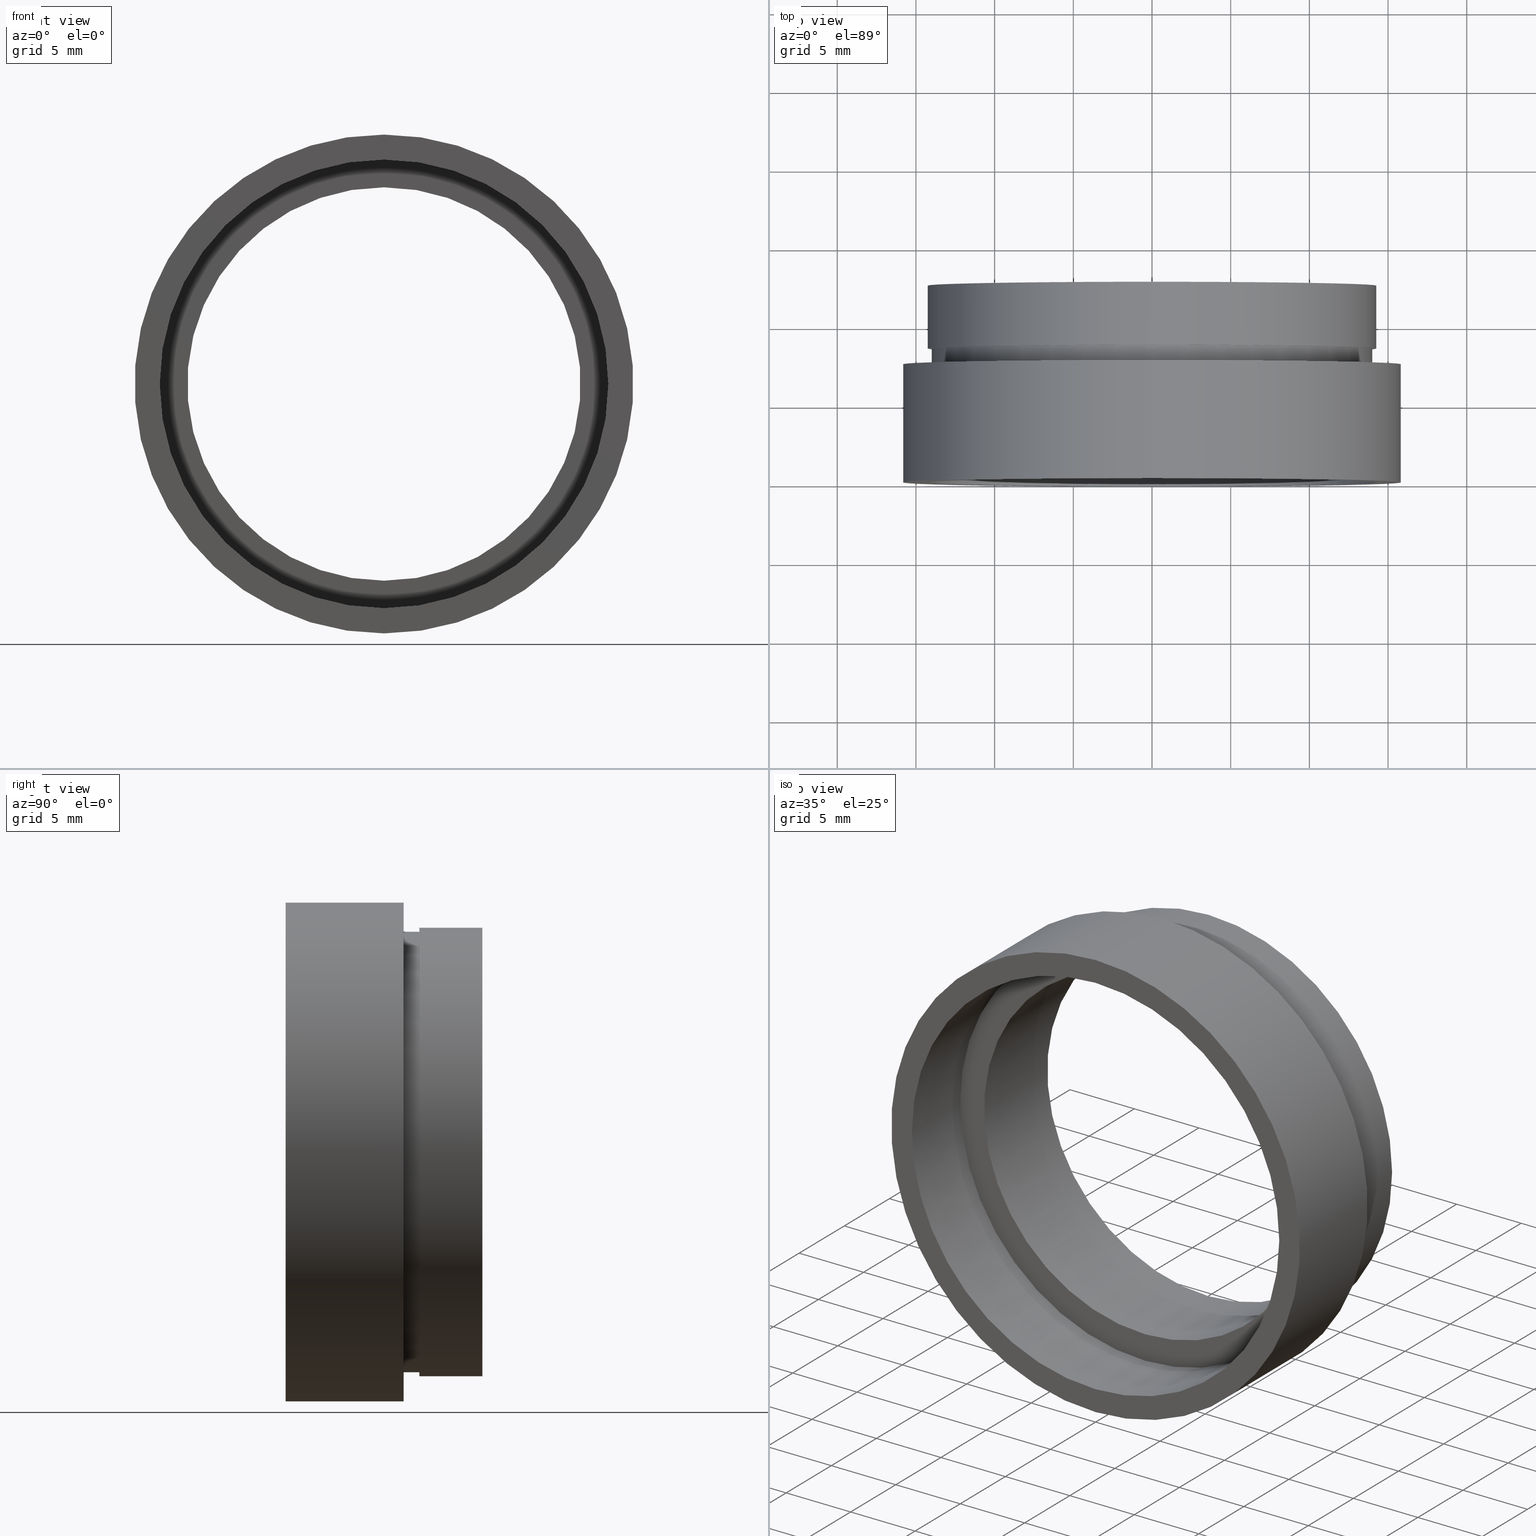
[diagram: canonical four-view strip — front | top / right | iso, engineering-drawing reading convention]
A machine part, canonical four-view strip (front | top / right | iso — engineering-drawing reading convention). The complete STEP part file that produces these views, byte-faithful:
ISO-10303-21;
HEADER;
FILE_DESCRIPTION (( 'STEP AP214' ),
    '1' );
FILE_NAME ('503049.STEP',
    '2019-09-06T06:44:08',
    ( '' ),
    ( '' ),
    'SwSTEP 2.0',
    'SolidWorks 2016',
    '' );
FILE_SCHEMA (( 'AUTOMOTIVE_DESIGN' ));
ENDSEC;

DATA;
#1 = EDGE_CURVE ( 'NONE', #366, #223, #378, .T. ) ;
#2 = FILL_AREA_STYLE_COLOUR ( '', #296 ) ;
#3 = AXIS2_PLACEMENT_3D ( 'NONE', #108, #254, #531 ) ;
#4 = DIRECTION ( 'NONE',  ( 0.0000000000000000000, 0.0000000000000000000, 1.000000000000000000 ) ) ;
#5 = CARTESIAN_POINT ( 'NONE',  ( 1.745121688784980600E-015, 161.3761669434274500, -14.25000000000002000 ) ) ;
#6 = DIRECTION ( 'NONE',  ( 0.0000000000000000000, -0.0000000000000000000, -1.000000000000000000 ) ) ;
#7 = AXIS2_PLACEMENT_3D ( 'NONE', #461, #78, #122 ) ;
#8 = CARTESIAN_POINT ( 'NONE',  ( 1.745121688784980200E-015, 12.49999999999998400, -14.25000000000001800 ) ) ;
#9 = ORIENTED_EDGE ( 'NONE', *, *, #424, .F. ) ;
#10 = DIRECTION ( 'NONE',  ( 0.0000000000000000000, 0.0000000000000000000, 1.000000000000000000 ) ) ;
#11 = SURFACE_STYLE_FILL_AREA ( #164 ) ;
#12 = ORIENTED_EDGE ( 'NONE', *, *, #448, .T. ) ;
#13 = CARTESIAN_POINT ( 'NONE',  ( 0.0000000000000000000, -2.775557561562891400E-014, 15.85000000000002100 ) ) ;
#14 = AXIS2_PLACEMENT_3D ( 'NONE', #413, #81, #414 ) ;
#15 = UNCERTAINTY_MEASURE_WITH_UNIT (LENGTH_MEASURE( 1.000000000000000100E-005 ), #157, 'distance_accuracy_value', 'NONE');
#16 = VERTEX_POINT ( 'NONE', #72 ) ;
#17 = ORIENTED_EDGE ( 'NONE', *, *, #1, .T. ) ;
#18 = PRESENTATION_STYLE_ASSIGNMENT (( #112 ) ) ;
#19 = ADVANCED_FACE ( 'NONE', ( #49, #125 ), #265, .F. ) ;
#20 =( NAMED_UNIT ( * ) PLANE_ANGLE_UNIT ( ) SI_UNIT ( $, .RADIAN. ) );
#21 = VECTOR ( 'NONE', #599, 1000.000000000000000 ) ;
#22 =( NAMED_UNIT ( * ) PLANE_ANGLE_UNIT ( ) SI_UNIT ( $, .RADIAN. ) );
#23 =( GEOMETRIC_REPRESENTATION_CONTEXT ( 3 ) GLOBAL_UNCERTAINTY_ASSIGNED_CONTEXT ( ( #82 ) ) GLOBAL_UNIT_ASSIGNED_CONTEXT ( ( #60, #20, #541 ) ) REPRESENTATION_CONTEXT ( 'NONE', 'WORKASPACE' ) );
#24 = DIRECTION ( 'NONE',  ( -0.0000000000000000000, 1.000000000000000000, 0.0000000000000000000 ) ) ;
#25 = AXIS2_PLACEMENT_3D ( 'NONE', #43, #183, #299 ) ;
#26 = FILL_AREA_STYLE_COLOUR ( '', #295 ) ;
#27 = ORIENTED_EDGE ( 'NONE', *, *, #242, .F. ) ;
#28 = ORIENTED_EDGE ( 'NONE', *, *, #536, .F. ) ;
#29 = EDGE_CURVE ( 'NONE', #316, #45, #610, .T. ) ;
#30 = CARTESIAN_POINT ( 'NONE',  ( 0.0000000000000000000, 161.3761669434274500, 0.0000000000000000000 ) ) ;
#31 = MANIFOLD_SOLID_BREP ( '��ת1', #465 ) ;
#32 = SURFACE_STYLE_FILL_AREA ( #218 ) ;
#33 = DIRECTION ( 'NONE',  ( 0.0000000000000000000, 0.0000000000000000000, 1.000000000000000000 ) ) ;
#34 = CYLINDRICAL_SURFACE ( 'NONE', #453, 14.25000000000002000 ) ;
#35 = PRESENTATION_LAYER_ASSIGNMENT (  '', '', ( #282 ) ) ;
#36 = CARTESIAN_POINT ( 'NONE',  ( 0.0000000000000000000, 161.3761669434274500, 14.25000000000002000 ) ) ;
#37 = CARTESIAN_POINT ( 'NONE',  ( 0.0000000000000000000, 4.500000000000032000, 0.0000000000000000000 ) ) ;
#38 =( LENGTH_UNIT ( ) NAMED_UNIT ( * ) SI_UNIT ( .MILLI., .METRE. ) );
#39 = AXIS2_PLACEMENT_3D ( 'NONE', #609, #558, #426 ) ;
#40 = DIRECTION ( 'NONE',  ( -0.0000000000000000000, 1.000000000000000000, -0.0000000000000000000 ) ) ;
#41 = EDGE_CURVE ( 'NONE', #45, #314, #363, .T. ) ;
#42 = DIRECTION ( 'NONE',  ( 0.0000000000000000000, -1.000000000000000000, 0.0000000000000000000 ) ) ;
#43 = CARTESIAN_POINT ( 'NONE',  ( 0.0000000000000000000, 161.3761669434274500, 0.0000000000000000000 ) ) ;
#44 = ORIENTED_EDGE ( 'NONE', *, *, #415, .T. ) ;
#45 = VERTEX_POINT ( 'NONE', #320 ) ;
#46 =( NAMED_UNIT ( * ) SI_UNIT ( $, .STERADIAN. ) SOLID_ANGLE_UNIT ( ) );
#47 = AXIS2_PLACEMENT_3D ( 'NONE', #369, #75, #560 ) ;
#48 =( NAMED_UNIT ( * ) PLANE_ANGLE_UNIT ( ) SI_UNIT ( $, .RADIAN. ) );
#49 = FACE_OUTER_BOUND ( 'NONE', #539, .T. ) ;
#50 = DIRECTION ( 'NONE',  ( -0.0000000000000000000, 1.000000000000000000, -0.0000000000000000000 ) ) ;
#51 = CARTESIAN_POINT ( 'NONE',  ( 1.530808498934193900E-015, 5.499999999999976900, -12.50000000000002000 ) ) ;
#52 = DIRECTION ( 'NONE',  ( 0.0000000000000000000, -1.000000000000000000, 0.0000000000000000000 ) ) ;
#53 = LINE ( 'NONE', #566, #327 ) ;
#54 = DIRECTION ( 'NONE',  ( 0.0000000000000000000, 0.0000000000000000000, 1.000000000000000000 ) ) ;
#55 = AXIS2_PLACEMENT_3D ( 'NONE', #523, #42, #431 ) ;
#56 = CYLINDRICAL_SURFACE ( 'NONE', #485, 15.85000000000002100 ) ;
#57 = EDGE_CURVE ( 'NONE', #316, #84, #174, .T. ) ;
#58 = VERTEX_POINT ( 'NONE', #225 ) ;
#59 = VECTOR ( 'NONE', #438, 1000.000000000000000 ) ;
#60 =( LENGTH_UNIT ( ) NAMED_UNIT ( * ) SI_UNIT ( .MILLI., .METRE. ) );
#61 = ADVANCED_FACE ( 'NONE', ( #588 ), #408, .T. ) ;
#62 = EDGE_CURVE ( 'NONE', #314, #84, #402, .T. ) ;
#63 = DIRECTION ( 'NONE',  ( 0.0000000000000000000, 0.0000000000000000000, 1.000000000000000000 ) ) ;
#64 = CIRCLE ( 'NONE', #39, 14.25000000000001800 ) ;
#65 = ORIENTED_EDGE ( 'NONE', *, *, #620, .F. ) ;
#66 = AXIS2_PLACEMENT_3D ( 'NONE', #298, #52, #6 ) ;
#67 = DIRECTION ( 'NONE',  ( 0.0000000000000000000, 0.0000000000000000000, 1.000000000000000000 ) ) ;
#68 = ORIENTED_EDGE ( 'NONE', *, *, #490, .F. ) ;
#69 = CARTESIAN_POINT ( 'NONE',  ( 0.0000000000000000000, 2.775557561562891400E-014, 0.0000000000000000000 ) ) ;
#70 = AXIS2_PLACEMENT_3D ( 'NONE', #153, #98, #477 ) ;
#71 = CIRCLE ( 'NONE', #182, 14.25000000000000000 ) ;
#72 = CARTESIAN_POINT ( 'NONE',  ( 0.0000000000000000000, 8.499999999999980500, 14.25000000000002000 ) ) ;
#73 = ORIENTED_EDGE ( 'NONE', *, *, #372, .T. ) ;
#74 = ORIENTED_EDGE ( 'NONE', *, *, #555, .T. ) ;
#75 = DIRECTION ( 'NONE',  ( -0.0000000000000000000, 1.000000000000000000, -0.0000000000000000000 ) ) ;
#76 = EDGE_CURVE ( 'NONE', #223, #576, #80, .T. ) ;
#77 = VECTOR ( 'NONE', #305, 1000.000000000000000 ) ;
#78 = DIRECTION ( 'NONE',  ( -0.0000000000000000000, 1.000000000000000000, -0.0000000000000000000 ) ) ;
#79 = PRESENTATION_LAYER_ASSIGNMENT (  '', '', ( #123 ) ) ;
#80 = LINE ( 'NONE', #457, #356 ) ;
#81 = DIRECTION ( 'NONE',  ( -0.0000000000000000000, 1.000000000000000000, -0.0000000000000000000 ) ) ;
#82 = UNCERTAINTY_MEASURE_WITH_UNIT (LENGTH_MEASURE( 1.000000000000000100E-005 ), #60, 'distance_accuracy_value', 'NONE');
#83 = DIRECTION ( 'NONE',  ( -0.0000000000000000000, 1.000000000000000000, -0.0000000000000000000 ) ) ;
#84 = VERTEX_POINT ( 'NONE', #505 ) ;
#85 = DIRECTION ( 'NONE',  ( -0.0000000000000000000, 1.000000000000000000, -0.0000000000000000000 ) ) ;
#86 = EDGE_LOOP ( 'NONE', ( #109, #306 ) ) ;
#87 = FACE_OUTER_BOUND ( 'NONE', #99, .T. ) ;
#88 = CARTESIAN_POINT ( 'NONE',  ( 1.714505518806296600E-015, 7.499999999999978700, -14.00000000000001800 ) ) ;
#89 = DIRECTION ( 'NONE',  ( -0.0000000000000000000, 1.000000000000000000, -0.0000000000000000000 ) ) ;
#90 = CYLINDRICAL_SURFACE ( 'NONE', #365, 14.00000000000001800 ) ;
#91 = PRODUCT_DEFINITION ( 'δ֪', '', #270, #288 ) ;
#92 = ORIENTED_EDGE ( 'NONE', *, *, #162, .F. ) ;
#93 = LINE ( 'NONE', #283, #199 ) ;
#94 = CARTESIAN_POINT ( 'NONE',  ( 1.745121688784980600E-015, 8.499999999999980500, -14.25000000000002000 ) ) ;
#95 = VECTOR ( 'NONE', #371, 1000.000000000000000 ) ;
#96 = DIRECTION ( 'NONE',  ( -0.0000000000000000000, 1.000000000000000000, -0.0000000000000000000 ) ) ;
#97 = EDGE_CURVE ( 'NONE', #16, #552, #582, .T. ) ;
#98 = DIRECTION ( 'NONE',  ( -0.0000000000000000000, 1.000000000000000000, -0.0000000000000000000 ) ) ;
#99 = EDGE_LOOP ( 'NONE', ( #118, #129 ) ) ;
#100 = EDGE_LOOP ( 'NONE', ( #27, #427 ) ) ;
#101 = CYLINDRICAL_SURFACE ( 'NONE', #172, 14.25000000000000000 ) ;
#102 = CARTESIAN_POINT ( 'NONE',  ( 0.0000000000000000000, 2.775557561562891400E-014, 0.0000000000000000000 ) ) ;
#103 = AXIS2_PLACEMENT_3D ( 'NONE', #236, #515, #568 ) ;
#104 = CARTESIAN_POINT ( 'NONE',  ( 0.0000000000000000000, 8.499999999999980500, 0.0000000000000000000 ) ) ;
#105 = PRESENTATION_STYLE_ASSIGNMENT (( #211 ) ) ;
#106 = DIRECTION ( 'NONE',  ( 0.0000000000000000000, -1.000000000000000000, 0.0000000000000000000 ) ) ;
#107 = MECHANICAL_DESIGN_GEOMETRIC_PRESENTATION_REPRESENTATION (  '', ( #147 ), #194 ) ;
#108 = CARTESIAN_POINT ( 'NONE',  ( 0.0000000000000000000, 7.499999999999978700, 0.0000000000000000000 ) ) ;
#109 = ORIENTED_EDGE ( 'NONE', *, *, #256, .T. ) ;
#110 = DIRECTION ( 'NONE',  ( -0.0000000000000000000, 1.000000000000000000, -0.0000000000000000000 ) ) ;
#111 = EDGE_CURVE ( 'NONE', #492, #538, #350, .T. ) ;
#112 = SURFACE_STYLE_USAGE ( .BOTH. , #403 ) ;
#113 = VECTOR ( 'NONE', #570, 1000.000000000000000 ) ;
#114 =( GEOMETRIC_REPRESENTATION_CONTEXT ( 3 ) GLOBAL_UNCERTAINTY_ASSIGNED_CONTEXT ( ( #264 ) ) GLOBAL_UNIT_ASSIGNED_CONTEXT ( ( #605, #323, #418 ) ) REPRESENTATION_CONTEXT ( 'NONE', 'WORKASPACE' ) );
#115 = ORIENTED_EDGE ( 'NONE', *, *, #536, .T. ) ;
#116 = EDGE_LOOP ( 'NONE', ( #184, #334, #507, #359 ) ) ;
#117 = FILL_AREA_STYLE ('',( #442 ) ) ;
#118 = ORIENTED_EDGE ( 'NONE', *, *, #595, .T. ) ;
#119 = CIRCLE ( 'NONE', #495, 14.00000000000001800 ) ;
#120 = PRESENTATION_LAYER_ASSIGNMENT (  '', '', ( #204 ) ) ;
#121 = ORIENTED_EDGE ( 'NONE', *, *, #97, .T. ) ;
#122 = DIRECTION ( 'NONE',  ( 0.0000000000000000000, 0.0000000000000000000, 1.000000000000000000 ) ) ;
#123 = STYLED_ITEM ( 'NONE', ( #478 ), #134 ) ;
#124 = SURFACE_SIDE_STYLE ('',( #543 ) ) ;
#125 = FACE_BOUND ( 'NONE', #584, .T. ) ;
#126 = CYLINDRICAL_SURFACE ( 'NONE', #140, 14.35000000000001900 ) ;
#127 = CARTESIAN_POINT ( 'NONE',  ( 0.0000000000000000000, 161.3761669434274500, 0.0000000000000000000 ) ) ;
#128 = EDGE_LOOP ( 'NONE', ( #243, #291, #344, #9 ) ) ;
#129 = ORIENTED_EDGE ( 'NONE', *, *, #424, .T. ) ;
#130 = ORIENTED_EDGE ( 'NONE', *, *, #430, .F. ) ;
#131 = EDGE_CURVE ( 'NONE', #170, #440, #269, .T. ) ;
#132 = DIRECTION ( 'NONE',  ( 0.0000000000000000000, 0.0000000000000000000, 1.000000000000000000 ) ) ;
#133 = CARTESIAN_POINT ( 'NONE',  ( 0.0000000000000000000, 8.499999999999980500, 0.0000000000000000000 ) ) ;
#134 = ADVANCED_FACE ( 'NONE', ( #499 ), #278, .F. ) ;
#135 = AXIS2_PLACEMENT_3D ( 'NONE', #616, #612, #285 ) ;
#136 = FACE_OUTER_BOUND ( 'NONE', #470, .T. ) ;
#137 = DIRECTION ( 'NONE',  ( 0.0000000000000000000, 0.0000000000000000000, 1.000000000000000000 ) ) ;
#138 = SURFACE_STYLE_USAGE ( .BOTH. , #177 ) ;
#139 =( LENGTH_UNIT ( ) NAMED_UNIT ( * ) SI_UNIT ( .MILLI., .METRE. ) );
#140 = AXIS2_PLACEMENT_3D ( 'NONE', #607, #178, #33 ) ;
#141 = ORIENTED_EDGE ( 'NONE', *, *, #338, .T. ) ;
#142 = CARTESIAN_POINT ( 'NONE',  ( 0.0000000000000000000, 161.3761669434274500, 0.0000000000000000000 ) ) ;
#143 = SURFACE_STYLE_USAGE ( .BOTH. , #428 ) ;
#144 = ORIENTED_EDGE ( 'NONE', *, *, #76, .T. ) ;
#145 = ORIENTED_EDGE ( 'NONE', *, *, #304, .F. ) ;
#146 = CARTESIAN_POINT ( 'NONE',  ( 1.745121688784978200E-015, 4.500000000000032000, -14.25000000000000000 ) ) ;
#147 = STYLED_ITEM ( 'NONE', ( #152 ), #163 ) ;
#148 = SURFACE_STYLE_FILL_AREA ( #255 ) ;
#149 = CARTESIAN_POINT ( 'NONE',  ( 0.0000000000000000000, 4.500000000000032000, 14.25000000000000000 ) ) ;
#150 = DIRECTION ( 'NONE',  ( -0.0000000000000000000, 1.000000000000000000, -0.0000000000000000000 ) ) ;
#151 = CARTESIAN_POINT ( 'NONE',  ( 1.941065176648557100E-015, 161.3761669434274500, -15.85000000000002100 ) ) ;
#152 = PRESENTATION_STYLE_ASSIGNMENT (( #458 ) ) ;
#153 = CARTESIAN_POINT ( 'NONE',  ( 0.0000000000000000000, 161.3761669434274500, 0.0000000000000000000 ) ) ;
#154 = CARTESIAN_POINT ( 'NONE',  ( 0.0000000000000000000, 2.775557561562891400E-014, 14.25000000000000000 ) ) ;
#155 = MECHANICAL_DESIGN_GEOMETRIC_PRESENTATION_REPRESENTATION (  '', ( #204 ), #23 ) ;
#156 = CARTESIAN_POINT ( 'NONE',  ( 1.530808498934193900E-015, 161.3761669434274500, -12.50000000000002000 ) ) ;
#157 =( LENGTH_UNIT ( ) NAMED_UNIT ( * ) SI_UNIT ( .MILLI., .METRE. ) );
#158 = AXIS2_PLACEMENT_3D ( 'NONE', #513, #226, #563 ) ;
#159 = CARTESIAN_POINT ( 'NONE',  ( 0.0000000000000000000, 161.3761669434274500, 0.0000000000000000000 ) ) ;
#160 = EDGE_LOOP ( 'NONE', ( #390, #603, #289, #74 ) ) ;
#161 = CARTESIAN_POINT ( 'NONE',  ( 0.0000000000000000000, 161.3761669434274500, 0.0000000000000000000 ) ) ;
#162 = EDGE_CURVE ( 'NONE', #429, #492, #528, .T. ) ;
#163 = ADVANCED_FACE ( 'NONE', ( #136 ), #165, .F. ) ;
#164 = FILL_AREA_STYLE ('',( #542 ) ) ;
#165 = CYLINDRICAL_SURFACE ( 'NONE', #526, 12.50000000000002000 ) ;
#166 = PRESENTATION_LAYER_ASSIGNMENT (  '', '', ( #311 ) ) ;
#167 = ADVANCED_FACE ( 'NONE', ( #227 ), #34, .T. ) ;
#168 = EDGE_CURVE ( 'NONE', #492, #429, #489, .T. ) ;
#169 = ORIENTED_EDGE ( 'NONE', *, *, #217, .F. ) ;
#170 = VERTEX_POINT ( 'NONE', #421 ) ;
#171 = EDGE_CURVE ( 'NONE', #552, #360, #64, .T. ) ;
#172 = AXIS2_PLACEMENT_3D ( 'NONE', #161, #110, #493 ) ;
#173 = SURFACE_SIDE_STYLE ('',( #32 ) ) ;
#174 = LINE ( 'NONE', #549, #396 ) ;
#175 = PRESENTATION_STYLE_ASSIGNMENT (( #439 ) ) ;
#176 = FILL_AREA_STYLE_COLOUR ( '', #322 ) ;
#177 = SURFACE_SIDE_STYLE ('',( #434 ) ) ;
#178 = DIRECTION ( 'NONE',  ( -0.0000000000000000000, 1.000000000000000000, -0.0000000000000000000 ) ) ;
#179 = PLANE ( 'NONE',  #614 ) ;
#180 = LINE ( 'NONE', #156, #425 ) ;
#181 = CARTESIAN_POINT ( 'NONE',  ( 12.50000000000002000, 5.499999999999984000, 0.0000000000000000000 ) ) ;
#182 = AXIS2_PLACEMENT_3D ( 'NONE', #37, #85, #284 ) ;
#183 = DIRECTION ( 'NONE',  ( -0.0000000000000000000, 1.000000000000000000, -0.0000000000000000000 ) ) ;
#184 = ORIENTED_EDGE ( 'NONE', *, *, #242, .T. ) ;
#185 = VERTEX_POINT ( 'NONE', #88 ) ;
#186 = CIRCLE ( 'NONE', #3, 14.00000000000001800 ) ;
#187 = APPLICATION_CONTEXT ( 'automotive_design' ) ;
#188 = SURFACE_SIDE_STYLE ('',( #600 ) ) ;
#189 = ADVANCED_FACE ( 'NONE', ( #409, #195 ), #179, .F. ) ;
#190 =( LENGTH_UNIT ( ) NAMED_UNIT ( * ) SI_UNIT ( .MILLI., .METRE. ) );
#191 = EDGE_CURVE ( 'NONE', #215, #576, #71, .T. ) ;
#192 = DIRECTION ( 'NONE',  ( 0.0000000000000000000, 0.0000000000000000000, 1.000000000000000000 ) ) ;
#193 = EDGE_LOOP ( 'NONE', ( #591, #404, #266, #324 ) ) ;
#194 =( GEOMETRIC_REPRESENTATION_CONTEXT ( 3 ) GLOBAL_UNCERTAINTY_ASSIGNED_CONTEXT ( ( #571 ) ) GLOBAL_UNIT_ASSIGNED_CONTEXT ( ( #508, #512, #554 ) ) REPRESENTATION_CONTEXT ( 'NONE', 'WORKASPACE' ) );
#195 = FACE_BOUND ( 'NONE', #86, .T. ) ;
#196 = ORIENTED_EDGE ( 'NONE', *, *, #29, .T. ) ;
#197 = CARTESIAN_POINT ( 'NONE',  ( 1.714505518806296600E-015, 161.3761669434274500, -14.00000000000001800 ) ) ;
#198 = ORIENTED_EDGE ( 'NONE', *, *, #168, .T. ) ;
#199 = VECTOR ( 'NONE', #40, 1000.000000000000000 ) ;
#200 = CARTESIAN_POINT ( 'NONE',  ( 0.0000000000000000000, 12.49999999999998400, 14.25000000000001800 ) ) ;
#201 = SURFACE_SIDE_STYLE ('',( #148 ) ) ;
#202 = COLOUR_RGB ( '',1.000000000000000000, 1.000000000000000000, 1.000000000000000000 ) ;
#203 = EDGE_CURVE ( 'NONE', #604, #16, #467, .T. ) ;
#204 = STYLED_ITEM ( 'NONE', ( #224 ), #520 ) ;
#205 = ADVANCED_FACE ( 'NONE', ( #351 ), #126, .F. ) ;
#206 = DIRECTION ( 'NONE',  ( -0.0000000000000000000, 1.000000000000000000, -0.0000000000000000000 ) ) ;
#207 = ORIENTED_EDGE ( 'NONE', *, *, #555, .F. ) ;
#208 = EDGE_LOOP ( 'NONE', ( #141, #623, #494, #258 ) ) ;
#209 = LINE ( 'NONE', #197, #77 ) ;
#210 = ADVANCED_FACE ( 'NONE', ( #370 ), #237, .F. ) ;
#211 = SURFACE_STYLE_USAGE ( .BOTH. , #594 ) ;
#212 = CIRCLE ( 'NONE', #376, 14.25000000000002000 ) ;
#213 = DIRECTION ( 'NONE',  ( 0.0000000000000000000, 0.0000000000000000000, 1.000000000000000000 ) ) ;
#214 = ORIENTED_EDGE ( 'NONE', *, *, #372, .F. ) ;
#215 = VERTEX_POINT ( 'NONE', #149 ) ;
#216 = FACE_OUTER_BOUND ( 'NONE', #391, .T. ) ;
#217 = EDGE_CURVE ( 'NONE', #604, #360, #544, .T. ) ;
#218 = FILL_AREA_STYLE ('',( #26 ) ) ;
#219 = DIRECTION ( 'NONE',  ( -0.0000000000000000000, 1.000000000000000000, -0.0000000000000000000 ) ) ;
#220 = DIRECTION ( 'NONE',  ( -0.0000000000000000000, 1.000000000000000000, -0.0000000000000000000 ) ) ;
#221 = EDGE_LOOP ( 'NONE', ( #28, #618, #345, #596 ) ) ;
#222 = CARTESIAN_POINT ( 'NONE',  ( 14.00000000000001800, 8.499999999999985800, 0.0000000000000000000 ) ) ;
#223 = VERTEX_POINT ( 'NONE', #387 ) ;
#224 = PRESENTATION_STYLE_ASSIGNMENT (( #257 ) ) ;
#225 = CARTESIAN_POINT ( 'NONE',  ( 0.0000000000000000000, 7.499999999999978700, 14.00000000000001800 ) ) ;
#226 = DIRECTION ( 'NONE',  ( -0.0000000000000000000, 1.000000000000000000, -0.0000000000000000000 ) ) ;
#227 = FACE_OUTER_BOUND ( 'NONE', #585, .T. ) ;
#228 = FILL_AREA_STYLE ('',( #315 ) ) ;
#229 = PLANE ( 'NONE',  #444 ) ;
#230 = STYLED_ITEM ( 'NONE', ( #175 ), #281 ) ;
#231 = VERTEX_POINT ( 'NONE', #297 ) ;
#232 = ORIENTED_EDGE ( 'NONE', *, *, #598, .T. ) ;
#233 = LINE ( 'NONE', #151, #59 ) ;
#234 = DIRECTION ( 'NONE',  ( -0.0000000000000000000, 1.000000000000000000, -0.0000000000000000000 ) ) ;
#235 = CARTESIAN_POINT ( 'NONE',  ( 0.0000000000000000000, 7.499999999999978700, 0.0000000000000000000 ) ) ;
#236 = CARTESIAN_POINT ( 'NONE',  ( 0.0000000000000000000, 5.499999999999976900, 0.0000000000000000000 ) ) ;
#237 = CYLINDRICAL_SURFACE ( 'NONE', #355, 14.35000000000001900 ) ;
#238 = DIRECTION ( 'NONE',  ( 0.0000000000000000000, 0.0000000000000000000, 1.000000000000000000 ) ) ;
#239 = ADVANCED_FACE ( 'NONE', ( #397 ), #90, .T. ) ;
#240 =( NAMED_UNIT ( * ) PLANE_ANGLE_UNIT ( ) SI_UNIT ( $, .RADIAN. ) );
#241 = VERTEX_POINT ( 'NONE', #51 ) ;
#242 = EDGE_CURVE ( 'NONE', #58, #185, #249, .T. ) ;
#243 = ORIENTED_EDGE ( 'NONE', *, *, #448, .F. ) ;
#244 = AXIS2_PLACEMENT_3D ( 'NONE', #159, #261, #309 ) ;
#245 = EDGE_LOOP ( 'NONE', ( #463, #602 ) ) ;
#246 = DIRECTION ( 'NONE',  ( -0.0000000000000000000, 1.000000000000000000, -0.0000000000000000000 ) ) ;
#247 = CARTESIAN_POINT ( 'NONE',  ( 0.0000000000000000000, 161.3761669434274500, 0.0000000000000000000 ) ) ;
#248 = PLANE ( 'NONE',  #66 ) ;
#249 = CIRCLE ( 'NONE', #318, 14.00000000000001800 ) ;
#250 = CARTESIAN_POINT ( 'NONE',  ( 0.0000000000000000000, 5.499999999999976900, 0.0000000000000000000 ) ) ;
#251 = DIRECTION ( 'NONE',  ( -0.0000000000000000000, 1.000000000000000000, -0.0000000000000000000 ) ) ;
#252 = AXIS2_PLACEMENT_3D ( 'NONE', #401, #106, #395 ) ;
#253 = FACE_OUTER_BOUND ( 'NONE', #480, .T. ) ;
#254 = DIRECTION ( 'NONE',  ( -0.0000000000000000000, 1.000000000000000000, -0.0000000000000000000 ) ) ;
#255 = FILL_AREA_STYLE ('',( #488 ) ) ;
#256 = EDGE_CURVE ( 'NONE', #441, #325, #449, .T. ) ;
#257 = SURFACE_STYLE_USAGE ( .BOTH. , #201 ) ;
#258 = ORIENTED_EDGE ( 'NONE', *, *, #97, .F. ) ;
#259 = ORIENTED_EDGE ( 'NONE', *, *, #462, .T. ) ;
#260 = ADVANCED_FACE ( 'NONE', ( #340 ), #589, .T. ) ;
#261 = DIRECTION ( 'NONE',  ( -0.0000000000000000000, 1.000000000000000000, -0.0000000000000000000 ) ) ;
#262 = CARTESIAN_POINT ( 'NONE',  ( 0.0000000000000000000, 4.499999999999976000, 0.0000000000000000000 ) ) ;
#263 = SHAPE_DEFINITION_REPRESENTATION ( #546, #564 ) ;
#264 = UNCERTAINTY_MEASURE_WITH_UNIT (LENGTH_MEASURE( 1.000000000000000100E-005 ), #605, 'distance_accuracy_value', 'NONE');
#265 = PLANE ( 'NONE',  #500 ) ;
#266 = ORIENTED_EDGE ( 'NONE', *, *, #620, .T. ) ;
#267 = UNCERTAINTY_MEASURE_WITH_UNIT (LENGTH_MEASURE( 1.000000000000000100E-005 ), #38, 'distance_accuracy_value', 'NONE');
#268 =( NAMED_UNIT ( * ) SI_UNIT ( $, .STERADIAN. ) SOLID_ANGLE_UNIT ( ) );
#269 = CIRCLE ( 'NONE', #7, 12.50000000000002000 ) ;
#270 = PRODUCT_DEFINITION_FORMATION_WITH_SPECIFIED_SOURCE ( '�κ�', '', #486, .NOT_KNOWN. ) ;
#271 = FILL_AREA_STYLE ('',( #176 ) ) ;
#272 = ORIENTED_EDGE ( 'NONE', *, *, #111, .F. ) ;
#273 = ORIENTED_EDGE ( 'NONE', *, *, #168, .F. ) ;
#274 = DIRECTION ( 'NONE',  ( 0.0000000000000000000, 0.0000000000000000000, 1.000000000000000000 ) ) ;
#275 = CIRCLE ( 'NONE', #384, 14.25000000000001800 ) ;
#276 = PRESENTATION_LAYER_ASSIGNMENT (  '', '', ( #147 ) ) ;
#277 = AXIS2_PLACEMENT_3D ( 'NONE', #587, #405, #63 ) ;
#278 = CYLINDRICAL_SURFACE ( 'NONE', #601, 12.50000000000002000 ) ;
#279 = COLOUR_RGB ( '',1.000000000000000000, 1.000000000000000000, 1.000000000000000000 ) ;
#280 = DIRECTION ( 'NONE',  ( -0.0000000000000000000, 1.000000000000000000, -0.0000000000000000000 ) ) ;
#281 = ADVANCED_FACE ( 'NONE', ( #529 ), #379, .F. ) ;
#282 = STYLED_ITEM ( 'NONE', ( #18 ), #491 ) ;
#283 = CARTESIAN_POINT ( 'NONE',  ( 0.0000000000000000000, 161.3761669434274500, 14.00000000000001800 ) ) ;
#284 = DIRECTION ( 'NONE',  ( 0.0000000000000000000, 0.0000000000000000000, 1.000000000000000000 ) ) ;
#285 = DIRECTION ( 'NONE',  ( 0.0000000000000000000, 0.0000000000000000000, 1.000000000000000000 ) ) ;
#286 = EDGE_CURVE ( 'NONE', #223, #366, #364, .T. ) ;
#287 = DIRECTION ( 'NONE',  ( 0.0000000000000000000, 0.0000000000000000000, 1.000000000000000000 ) ) ;
#288 = PRODUCT_DEFINITION_CONTEXT ( 'detailed design', #341, 'design' ) ;
#289 = ORIENTED_EDGE ( 'NONE', *, *, #57, .T. ) ;
#290 = DIRECTION ( 'NONE',  ( 0.0000000000000000000, 0.0000000000000000000, 1.000000000000000000 ) ) ;
#291 = ORIENTED_EDGE ( 'NONE', *, *, #162, .T. ) ;
#292 = COLOUR_RGB ( '',1.000000000000000000, 1.000000000000000000, 1.000000000000000000 ) ;
#293 = PLANE ( 'NONE',  #55 ) ;
#294 =( NAMED_UNIT ( * ) SI_UNIT ( $, .STERADIAN. ) SOLID_ANGLE_UNIT ( ) );
#295 = COLOUR_RGB ( '',1.000000000000000000, 1.000000000000000000, 1.000000000000000000 ) ;
#296 = COLOUR_RGB ( '',1.000000000000000000, 1.000000000000000000, 1.000000000000000000 ) ;
#297 = CARTESIAN_POINT ( 'NONE',  ( 0.0000000000000000000, 5.499999999999976900, 12.50000000000002000 ) ) ;
#298 = CARTESIAN_POINT ( 'NONE',  ( 12.50000000000002000, 12.49999999999998900, 0.0000000000000000000 ) ) ;
#299 = DIRECTION ( 'NONE',  ( 0.0000000000000000000, 0.0000000000000000000, 1.000000000000000000 ) ) ;
#300 = PRODUCT_RELATED_PRODUCT_CATEGORY ( 'part', '', ( #486 ) ) ;
#301 = DIRECTION ( 'NONE',  ( 0.0000000000000000000, 0.0000000000000000000, 1.000000000000000000 ) ) ;
#302 = PRESENTATION_STYLE_ASSIGNMENT (( #143 ) ) ;
#303 = CARTESIAN_POINT ( 'NONE',  ( 0.0000000000000000000, 12.49999999999998400, 0.0000000000000000000 ) ) ;
#304 = EDGE_CURVE ( 'NONE', #325, #441, #119, .T. ) ;
#305 = DIRECTION ( 'NONE',  ( -0.0000000000000000000, 1.000000000000000000, -0.0000000000000000000 ) ) ;
#306 = ORIENTED_EDGE ( 'NONE', *, *, #304, .T. ) ;
#307 = AXIS2_PLACEMENT_3D ( 'NONE', #525, #50, #399 ) ;
#308 = ORIENTED_EDGE ( 'NONE', *, *, #332, .T. ) ;
#309 = DIRECTION ( 'NONE',  ( 0.0000000000000000000, 0.0000000000000000000, 1.000000000000000000 ) ) ;
#310 = PRESENTATION_LAYER_ASSIGNMENT (  '', '', ( #559 ) ) ;
#311 = STYLED_ITEM ( 'NONE', ( #302 ), #564 ) ;
#312 = VECTOR ( 'NONE', #557, 1000.000000000000000 ) ;
#313 = PRESENTATION_STYLE_ASSIGNMENT (( #138 ) ) ;
#314 = VERTEX_POINT ( 'NONE', #348 ) ;
#315 = FILL_AREA_STYLE_COLOUR ( '', #202 ) ;
#316 = VERTEX_POINT ( 'NONE', #484 ) ;
#317 = ORIENTED_EDGE ( 'NONE', *, *, #415, .F. ) ;
#318 = AXIS2_PLACEMENT_3D ( 'NONE', #235, #624, #287 ) ;
#319 = FACE_BOUND ( 'NONE', #100, .T. ) ;
#320 = CARTESIAN_POINT ( 'NONE',  ( 1.757368156776454300E-015, 4.499999999999976000, -14.35000000000001900 ) ) ;
#321 = DIRECTION ( 'NONE',  ( -0.0000000000000000000, 1.000000000000000000, -0.0000000000000000000 ) ) ;
#322 = COLOUR_RGB ( '',1.000000000000000000, 1.000000000000000000, 1.000000000000000000 ) ;
#323 =( NAMED_UNIT ( * ) PLANE_ANGLE_UNIT ( ) SI_UNIT ( $, .RADIAN. ) );
#324 = ORIENTED_EDGE ( 'NONE', *, *, #191, .T. ) ;
#325 = VERTEX_POINT ( 'NONE', #432 ) ;
#326 = CARTESIAN_POINT ( 'NONE',  ( 0.0000000000000000000, 161.3761669434274500, 0.0000000000000000000 ) ) ;
#327 = VECTOR ( 'NONE', #234, 1000.000000000000000 ) ;
#328 = AXIS2_PLACEMENT_3D ( 'NONE', #406, #537, #450 ) ;
#329 = DIRECTION ( 'NONE',  ( 0.0000000000000000000, 0.0000000000000000000, 1.000000000000000000 ) ) ;
#330 = FACE_OUTER_BOUND ( 'NONE', #128, .T. ) ;
#331 = CARTESIAN_POINT ( 'NONE',  ( 0.0000000000000000000, 0.0000000000000000000, 0.0000000000000000000 ) ) ;
#332 = EDGE_CURVE ( 'NONE', #231, #440, #460, .T. ) ;
#333 = UNCERTAINTY_MEASURE_WITH_UNIT (LENGTH_MEASURE( 1.000000000000000100E-005 ), #139, 'distance_accuracy_value', 'NONE');
#334 = ORIENTED_EDGE ( 'NONE', *, *, #522, .T. ) ;
#335 = EDGE_LOOP ( 'NONE', ( #483, #353, #232, #145 ) ) ;
#336 = CIRCLE ( 'NONE', #135, 15.85000000000002100 ) ;
#337 = DIRECTION ( 'NONE',  ( 0.0000000000000000000, 0.0000000000000000000, 1.000000000000000000 ) ) ;
#338 = EDGE_CURVE ( 'NONE', #16, #604, #212, .T. ) ;
#339 = COLOUR_RGB ( '',1.000000000000000000, 1.000000000000000000, 1.000000000000000000 ) ;
#340 = FACE_OUTER_BOUND ( 'NONE', #116, .T. ) ;
#341 = APPLICATION_CONTEXT ( 'automotive_design' ) ;
#342 = ADVANCED_FACE ( 'NONE', ( #330 ), #56, .T. ) ;
#343 =( GEOMETRIC_REPRESENTATION_CONTEXT ( 3 ) GLOBAL_UNCERTAINTY_ASSIGNED_CONTEXT ( ( #267 ) ) GLOBAL_UNIT_ASSIGNED_CONTEXT ( ( #38, #514, #380 ) ) REPRESENTATION_CONTEXT ( 'NONE', 'WORKASPACE' ) );
#344 = ORIENTED_EDGE ( 'NONE', *, *, #111, .T. ) ;
#345 = ORIENTED_EDGE ( 'NONE', *, *, #62, .T. ) ;
#346 = FILL_AREA_STYLE ('',( #2 ) ) ;
#347 = CARTESIAN_POINT ( 'NONE',  ( 0.0000000000000000000, 12.49999999999998400, 12.50000000000002000 ) ) ;
#348 = CARTESIAN_POINT ( 'NONE',  ( 1.757368156776454300E-015, 5.499999999999976900, -14.35000000000001900 ) ) ;
#349 = CARTESIAN_POINT ( 'NONE',  ( 1.941065176648557100E-015, -2.775557561562891400E-014, -15.85000000000002100 ) ) ;
#350 = LINE ( 'NONE', #419, #312 ) ;
#351 = FACE_OUTER_BOUND ( 'NONE', #221, .T. ) ;
#352 = MECHANICAL_DESIGN_GEOMETRIC_PRESENTATION_REPRESENTATION (  '', ( #282 ), #362 ) ;
#353 = ORIENTED_EDGE ( 'NONE', *, *, #459, .T. ) ;
#354 = CARTESIAN_POINT ( 'NONE',  ( 0.0000000000000000000, 7.499999999999978700, 15.85000000000002100 ) ) ;
#355 = AXIS2_PLACEMENT_3D ( 'NONE', #247, #479, #54 ) ;
#356 = VECTOR ( 'NONE', #377, 1000.000000000000000 ) ;
#357 =( NAMED_UNIT ( * ) SI_UNIT ( $, .STERADIAN. ) SOLID_ANGLE_UNIT ( ) );
#358 = CIRCLE ( 'NONE', #307, 15.85000000000002100 ) ;
#359 = ORIENTED_EDGE ( 'NONE', *, *, #598, .F. ) ;
#360 = VERTEX_POINT ( 'NONE', #8 ) ;
#361 = FACE_OUTER_BOUND ( 'NONE', #208, .T. ) ;
#362 =( GEOMETRIC_REPRESENTATION_CONTEXT ( 3 ) GLOBAL_UNCERTAINTY_ASSIGNED_CONTEXT ( ( #15 ) ) GLOBAL_UNIT_ASSIGNED_CONTEXT ( ( #157, #446, #357 ) ) REPRESENTATION_CONTEXT ( 'NONE', 'WORKASPACE' ) );
#363 = LINE ( 'NONE', #498, #21 ) ;
#364 = CIRCLE ( 'NONE', #435, 14.25000000000000000 ) ;
#365 = AXIS2_PLACEMENT_3D ( 'NONE', #142, #524, #615 ) ;
#366 = VERTEX_POINT ( 'NONE', #154 ) ;
#367 = ORIENTED_EDGE ( 'NONE', *, *, #286, .T. ) ;
#368 = CIRCLE ( 'NONE', #277, 14.35000000000001900 ) ;
#369 = CARTESIAN_POINT ( 'NONE',  ( 0.0000000000000000000, 161.3761669434274500, 0.0000000000000000000 ) ) ;
#370 = FACE_OUTER_BOUND ( 'NONE', #160, .T. ) ;
#371 = DIRECTION ( 'NONE',  ( -0.0000000000000000000, 1.000000000000000000, -0.0000000000000000000 ) ) ;
#372 = EDGE_CURVE ( 'NONE', #440, #170, #611, .T. ) ;
#373 = ORIENTED_EDGE ( 'NONE', *, *, #62, .F. ) ;
#374 = ORIENTED_EDGE ( 'NONE', *, *, #567, .F. ) ;
#375 = AXIS2_PLACEMENT_3D ( 'NONE', #133, #527, #238 ) ;
#376 = AXIS2_PLACEMENT_3D ( 'NONE', #104, #246, #301 ) ;
#377 = DIRECTION ( 'NONE',  ( -0.0000000000000000000, 1.000000000000000000, -0.0000000000000000000 ) ) ;
#378 = CIRCLE ( 'NONE', #593, 14.25000000000000000 ) ;
#379 = CYLINDRICAL_SURFACE ( 'NONE', #70, 14.25000000000000000 ) ;
#380 =( NAMED_UNIT ( * ) SI_UNIT ( $, .STERADIAN. ) SOLID_ANGLE_UNIT ( ) );
#381 = FILL_AREA_STYLE_COLOUR ( '', #279 ) ;
#382 = EDGE_LOOP ( 'NONE', ( #553, #44, #454, #389 ) ) ;
#383 = CIRCLE ( 'NONE', #328, 14.25000000000000000 ) ;
#384 = AXIS2_PLACEMENT_3D ( 'NONE', #516, #280, #290 ) ;
#385 =( NAMED_UNIT ( * ) SI_UNIT ( $, .STERADIAN. ) SOLID_ANGLE_UNIT ( ) );
#386 = PRESENTATION_LAYER_ASSIGNMENT (  '', '', ( #230 ) ) ;
#387 = CARTESIAN_POINT ( 'NONE',  ( 1.745121688784978200E-015, 2.775557561562891400E-014, -14.25000000000000000 ) ) ;
#388 =( LENGTH_UNIT ( ) NAMED_UNIT ( * ) SI_UNIT ( .MILLI., .METRE. ) );
#389 = ORIENTED_EDGE ( 'NONE', *, *, #332, .F. ) ;
#390 = ORIENTED_EDGE ( 'NONE', *, *, #41, .F. ) ;
#391 = EDGE_LOOP ( 'NONE', ( #509, #521 ) ) ;
#392 = CIRCLE ( 'NONE', #469, 12.50000000000002000 ) ;
#393 = DIRECTION ( 'NONE',  ( -0.0000000000000000000, 1.000000000000000000, 0.0000000000000000000 ) ) ;
#394 = DIRECTION ( 'NONE',  ( -0.0000000000000000000, 1.000000000000000000, -0.0000000000000000000 ) ) ;
#395 = DIRECTION ( 'NONE',  ( 0.0000000000000000000, -0.0000000000000000000, -1.000000000000000000 ) ) ;
#396 = VECTOR ( 'NONE', #220, 1000.000000000000000 ) ;
#397 = FACE_OUTER_BOUND ( 'NONE', #335, .T. ) ;
#398 = COLOUR_RGB ( '',1.000000000000000000, 1.000000000000000000, 1.000000000000000000 ) ;
#399 = DIRECTION ( 'NONE',  ( 0.0000000000000000000, 0.0000000000000000000, 1.000000000000000000 ) ) ;
#400 = PRESENTATION_LAYER_ASSIGNMENT (  '', '', ( #532 ) ) ;
#401 = CARTESIAN_POINT ( 'NONE',  ( 14.25000000000000000, 4.500000000000008000, 0.0000000000000000000 ) ) ;
#402 = CIRCLE ( 'NONE', #14, 14.35000000000001900 ) ;
#403 = SURFACE_SIDE_STYLE ('',( #511 ) ) ;
#404 = ORIENTED_EDGE ( 'NONE', *, *, #1, .F. ) ;
#405 = DIRECTION ( 'NONE',  ( -0.0000000000000000000, 1.000000000000000000, -0.0000000000000000000 ) ) ;
#406 = CARTESIAN_POINT ( 'NONE',  ( 0.0000000000000000000, 4.500000000000032000, 0.0000000000000000000 ) ) ;
#407 =( GEOMETRIC_REPRESENTATION_CONTEXT ( 3 ) GLOBAL_UNCERTAINTY_ASSIGNED_CONTEXT ( ( #445 ) ) GLOBAL_UNIT_ASSIGNED_CONTEXT ( ( #190, #48, #294 ) ) REPRESENTATION_CONTEXT ( 'NONE', 'WORKASPACE' ) );
#408 = CYLINDRICAL_SURFACE ( 'NONE', #47, 15.85000000000002100 ) ;
#409 = FACE_OUTER_BOUND ( 'NONE', #245, .T. ) ;
#410 = ADVANCED_FACE ( 'NONE', ( #452, #504 ), #433, .F. ) ;
#411 = DIRECTION ( 'NONE',  ( 0.0000000000000000000, 0.0000000000000000000, 1.000000000000000000 ) ) ;
#412 = DIRECTION ( 'NONE',  ( -0.0000000000000000000, 1.000000000000000000, -0.0000000000000000000 ) ) ;
#413 = CARTESIAN_POINT ( 'NONE',  ( 0.0000000000000000000, 5.499999999999976900, 0.0000000000000000000 ) ) ;
#414 = DIRECTION ( 'NONE',  ( 0.0000000000000000000, 0.0000000000000000000, 1.000000000000000000 ) ) ;
#415 = EDGE_CURVE ( 'NONE', #241, #170, #180, .T. ) ;
#416 = EDGE_LOOP ( 'NONE', ( #196, #115 ) ) ;
#417 = ORIENTED_EDGE ( 'NONE', *, *, #203, .T. ) ;
#418 =( NAMED_UNIT ( * ) SI_UNIT ( $, .STERADIAN. ) SOLID_ANGLE_UNIT ( ) );
#419 = CARTESIAN_POINT ( 'NONE',  ( 0.0000000000000000000, 161.3761669434274500, 15.85000000000002100 ) ) ;
#420 = SURFACE_STYLE_USAGE ( .BOTH. , #124 ) ;
#421 = CARTESIAN_POINT ( 'NONE',  ( 1.530808498934193900E-015, 12.49999999999998400, -12.50000000000002000 ) ) ;
#422 = DIRECTION ( 'NONE',  ( -0.0000000000000000000, 1.000000000000000000, 0.0000000000000000000 ) ) ;
#423 = PRODUCT_CONTEXT ( 'NONE', #187, 'mechanical' ) ;
#424 = EDGE_CURVE ( 'NONE', #510, #538, #358, .T. ) ;
#425 = VECTOR ( 'NONE', #251, 1000.000000000000000 ) ;
#426 = DIRECTION ( 'NONE',  ( 0.0000000000000000000, 0.0000000000000000000, 1.000000000000000000 ) ) ;
#427 = ORIENTED_EDGE ( 'NONE', *, *, #459, .F. ) ;
#428 = SURFACE_SIDE_STYLE ('',( #548 ) ) ;
#429 = VERTEX_POINT ( 'NONE', #349 ) ;
#430 = EDGE_CURVE ( 'NONE', #231, #241, #501, .T. ) ;
#431 = DIRECTION ( 'NONE',  ( 0.0000000000000000000, -0.0000000000000000000, -1.000000000000000000 ) ) ;
#432 = CARTESIAN_POINT ( 'NONE',  ( 1.714505518806296600E-015, 8.499999999999980500, -14.00000000000001800 ) ) ;
#433 = PLANE ( 'NONE',  #252 ) ;
#434 = SURFACE_STYLE_FILL_AREA ( #228 ) ;
#435 = AXIS2_PLACEMENT_3D ( 'NONE', #102, #394, #436 ) ;
#436 = DIRECTION ( 'NONE',  ( 0.0000000000000000000, 0.0000000000000000000, 1.000000000000000000 ) ) ;
#437 = AXIS2_PLACEMENT_3D ( 'NONE', #534, #150, #4 ) ;
#438 = DIRECTION ( 'NONE',  ( -0.0000000000000000000, 1.000000000000000000, -0.0000000000000000000 ) ) ;
#439 = SURFACE_STYLE_USAGE ( .BOTH. , #188 ) ;
#440 = VERTEX_POINT ( 'NONE', #347 ) ;
#441 = VERTEX_POINT ( 'NONE', #482 ) ;
#442 = FILL_AREA_STYLE_COLOUR ( '', #292 ) ;
#443 = DIRECTION ( 'NONE',  ( -0.0000000000000000000, 1.000000000000000000, -0.0000000000000000000 ) ) ;
#444 = AXIS2_PLACEMENT_3D ( 'NONE', #181, #393, #518 ) ;
#445 = UNCERTAINTY_MEASURE_WITH_UNIT (LENGTH_MEASURE( 1.000000000000000100E-005 ), #190, 'distance_accuracy_value', 'NONE');
#446 =( NAMED_UNIT ( * ) PLANE_ANGLE_UNIT ( ) SI_UNIT ( $, .RADIAN. ) );
#447 = EDGE_LOOP ( 'NONE', ( #569, #259 ) ) ;
#448 = EDGE_CURVE ( 'NONE', #429, #510, #233, .T. ) ;
#449 = CIRCLE ( 'NONE', #550, 14.00000000000001800 ) ;
#450 = DIRECTION ( 'NONE',  ( 0.0000000000000000000, 0.0000000000000000000, 1.000000000000000000 ) ) ;
#451 = EDGE_LOOP ( 'NONE', ( #207, #373 ) ) ;
#452 = FACE_BOUND ( 'NONE', #621, .T. ) ;
#453 = AXIS2_PLACEMENT_3D ( 'NONE', #326, #321, #329 ) ;
#454 = ORIENTED_EDGE ( 'NONE', *, *, #131, .T. ) ;
#455 = ORIENTED_EDGE ( 'NONE', *, *, #286, .F. ) ;
#456 = CYLINDRICAL_SURFACE ( 'NONE', #244, 14.25000000000002000 ) ;
#457 = CARTESIAN_POINT ( 'NONE',  ( 1.745121688784978200E-015, 161.3761669434274500, -14.25000000000000000 ) ) ;
#458 = SURFACE_STYLE_USAGE ( .BOTH. , #173 ) ;
#459 = EDGE_CURVE ( 'NONE', #185, #58, #186, .T. ) ;
#460 = LINE ( 'NONE', #617, #556 ) ;
#461 = CARTESIAN_POINT ( 'NONE',  ( 0.0000000000000000000, 12.49999999999998400, 0.0000000000000000000 ) ) ;
#462 = EDGE_CURVE ( 'NONE', #241, #231, #392, .T. ) ;
#463 = ORIENTED_EDGE ( 'NONE', *, *, #338, .F. ) ;
#464 = MECHANICAL_DESIGN_GEOMETRIC_PRESENTATION_REPRESENTATION (  '', ( #311 ), #535 ) ;
#465 = CLOSED_SHELL ( 'NONE', ( #491, #205, #134, #520, #260, #61, #19, #342, #619, #239, #189, #167, #473, #163, #590, #210, #410, #281 ) ) ;
#466 = DIRECTION ( 'NONE',  ( -0.0000000000000000000, 1.000000000000000000, -0.0000000000000000000 ) ) ;
#467 = CIRCLE ( 'NONE', #375, 14.25000000000002000 ) ;
#468 = DIRECTION ( 'NONE',  ( 0.0000000000000000000, 0.0000000000000000000, 1.000000000000000000 ) ) ;
#469 = AXIS2_PLACEMENT_3D ( 'NONE', #250, #580, #578 ) ;
#470 = EDGE_LOOP ( 'NONE', ( #317, #130, #308, #73 ) ) ;
#471 = FACE_BOUND ( 'NONE', #447, .T. ) ;
#472 = FILL_AREA_STYLE ('',( #381 ) ) ;
#473 = ADVANCED_FACE ( 'NONE', ( #606, #216 ), #248, .F. ) ;
#474 = DIRECTION ( 'NONE',  ( -0.0000000000000000000, 1.000000000000000000, -0.0000000000000000000 ) ) ;
#475 =( NAMED_UNIT ( * ) PLANE_ANGLE_UNIT ( ) SI_UNIT ( $, .RADIAN. ) );
#476 = MECHANICAL_DESIGN_GEOMETRIC_PRESENTATION_REPRESENTATION (  '', ( #230 ), #407 ) ;
#477 = DIRECTION ( 'NONE',  ( 0.0000000000000000000, 0.0000000000000000000, 1.000000000000000000 ) ) ;
#478 = PRESENTATION_STYLE_ASSIGNMENT (( #420 ) ) ;
#479 = DIRECTION ( 'NONE',  ( -0.0000000000000000000, 1.000000000000000000, -0.0000000000000000000 ) ) ;
#480 = EDGE_LOOP ( 'NONE', ( #455, #144, #562, #65 ) ) ;
#481 = ORIENTED_EDGE ( 'NONE', *, *, #595, .F. ) ;
#482 = CARTESIAN_POINT ( 'NONE',  ( 0.0000000000000000000, 8.499999999999980500, 14.00000000000001800 ) ) ;
#483 = ORIENTED_EDGE ( 'NONE', *, *, #522, .F. ) ;
#484 = CARTESIAN_POINT ( 'NONE',  ( 0.0000000000000000000, 4.499999999999976000, 14.35000000000001900 ) ) ;
#485 = AXIS2_PLACEMENT_3D ( 'NONE', #533, #575, #192 ) ;
#486 = PRODUCT ( '503049', '503049', '', ( #423 ) ) ;
#487 = CIRCLE ( 'NONE', #103, 14.35000000000001900 ) ;
#488 = FILL_AREA_STYLE_COLOUR ( '', #398 ) ;
#489 = CIRCLE ( 'NONE', #158, 15.85000000000002100 ) ;
#490 = EDGE_CURVE ( 'NONE', #576, #215, #383, .T. ) ;
#491 = ADVANCED_FACE ( 'NONE', ( #253 ), #101, .F. ) ;
#492 = VERTEX_POINT ( 'NONE', #13 ) ;
#493 = DIRECTION ( 'NONE',  ( 0.0000000000000000000, 0.0000000000000000000, 1.000000000000000000 ) ) ;
#494 = ORIENTED_EDGE ( 'NONE', *, *, #171, .F. ) ;
#495 = AXIS2_PLACEMENT_3D ( 'NONE', #530, #96, #579 ) ;
#496 = AXIS2_PLACEMENT_3D ( 'NONE', #331, #468, #622 ) ;
#497 = CARTESIAN_POINT ( 'NONE',  ( 14.25000000000000000, 8.726008142763375300E-015, 0.0000000000000000000 ) ) ;
#498 = CARTESIAN_POINT ( 'NONE',  ( 1.757368156776454300E-015, 161.3761669434274500, -14.35000000000001900 ) ) ;
#499 = FACE_OUTER_BOUND ( 'NONE', #382, .T. ) ;
#500 = AXIS2_PLACEMENT_3D ( 'NONE', #497, #24, #213 ) ;
#501 = CIRCLE ( 'NONE', #437, 12.50000000000002000 ) ;
#502 =( GEOMETRIC_REPRESENTATION_CONTEXT ( 3 ) GLOBAL_UNCERTAINTY_ASSIGNED_CONTEXT ( ( #608 ) ) GLOBAL_UNIT_ASSIGNED_CONTEXT ( ( #388, #240, #385 ) ) REPRESENTATION_CONTEXT ( 'NONE', 'WORKASPACE' ) );
#503 = DIRECTION ( 'NONE',  ( 0.0000000000000000000, 0.0000000000000000000, 1.000000000000000000 ) ) ;
#504 = FACE_OUTER_BOUND ( 'NONE', #416, .T. ) ;
#505 = CARTESIAN_POINT ( 'NONE',  ( 0.0000000000000000000, 5.499999999999976900, 14.35000000000001900 ) ) ;
#506 = AXIS2_PLACEMENT_3D ( 'NONE', #262, #206, #67 ) ;
#507 = ORIENTED_EDGE ( 'NONE', *, *, #256, .F. ) ;
#508 =( LENGTH_UNIT ( ) NAMED_UNIT ( * ) SI_UNIT ( .MILLI., .METRE. ) );
#509 = ORIENTED_EDGE ( 'NONE', *, *, #171, .T. ) ;
#510 = VERTEX_POINT ( 'NONE', #586 ) ;
#511 = SURFACE_STYLE_FILL_AREA ( #117 ) ;
#512 =( NAMED_UNIT ( * ) PLANE_ANGLE_UNIT ( ) SI_UNIT ( $, .RADIAN. ) );
#513 = CARTESIAN_POINT ( 'NONE',  ( 0.0000000000000000000, -2.775557561562891400E-014, 0.0000000000000000000 ) ) ;
#514 =( NAMED_UNIT ( * ) PLANE_ANGLE_UNIT ( ) SI_UNIT ( $, .RADIAN. ) );
#515 = DIRECTION ( 'NONE',  ( -0.0000000000000000000, 1.000000000000000000, -0.0000000000000000000 ) ) ;
#516 = CARTESIAN_POINT ( 'NONE',  ( 0.0000000000000000000, 12.49999999999998400, 0.0000000000000000000 ) ) ;
#517 = MECHANICAL_DESIGN_GEOMETRIC_PRESENTATION_REPRESENTATION (  '', ( #559 ), #343 ) ;
#518 = DIRECTION ( 'NONE',  ( 0.0000000000000000000, 0.0000000000000000000, 1.000000000000000000 ) ) ;
#519 = APPLICATION_PROTOCOL_DEFINITION ( 'draft international standard', 'automotive_design', 1998, #341 ) ;
#520 = ADVANCED_FACE ( 'NONE', ( #361 ), #456, .T. ) ;
#521 = ORIENTED_EDGE ( 'NONE', *, *, #567, .T. ) ;
#522 = EDGE_CURVE ( 'NONE', #185, #325, #209, .T. ) ;
#523 = CARTESIAN_POINT ( 'NONE',  ( 14.00000000000001800, 7.499999999999984000, 0.0000000000000000000 ) ) ;
#524 = DIRECTION ( 'NONE',  ( -0.0000000000000000000, 1.000000000000000000, -0.0000000000000000000 ) ) ;
#525 = CARTESIAN_POINT ( 'NONE',  ( 0.0000000000000000000, 7.499999999999978700, 0.0000000000000000000 ) ) ;
#526 = AXIS2_PLACEMENT_3D ( 'NONE', #127, #466, #274 ) ;
#527 = DIRECTION ( 'NONE',  ( -0.0000000000000000000, 1.000000000000000000, -0.0000000000000000000 ) ) ;
#528 = CIRCLE ( 'NONE', #583, 15.85000000000002100 ) ;
#529 = FACE_OUTER_BOUND ( 'NONE', #193, .T. ) ;
#530 = CARTESIAN_POINT ( 'NONE',  ( 0.0000000000000000000, 8.499999999999980500, 0.0000000000000000000 ) ) ;
#531 = DIRECTION ( 'NONE',  ( 0.0000000000000000000, 0.0000000000000000000, 1.000000000000000000 ) ) ;
#532 = STYLED_ITEM ( 'NONE', ( #105 ), #31 ) ;
#533 = CARTESIAN_POINT ( 'NONE',  ( 0.0000000000000000000, 161.3761669434274500, 0.0000000000000000000 ) ) ;
#534 = CARTESIAN_POINT ( 'NONE',  ( 0.0000000000000000000, 5.499999999999976900, 0.0000000000000000000 ) ) ;
#535 =( GEOMETRIC_REPRESENTATION_CONTEXT ( 3 ) GLOBAL_UNCERTAINTY_ASSIGNED_CONTEXT ( ( #333 ) ) GLOBAL_UNIT_ASSIGNED_CONTEXT ( ( #139, #475, #46 ) ) REPRESENTATION_CONTEXT ( 'NONE', 'WORKASPACE' ) );
#536 = EDGE_CURVE ( 'NONE', #45, #316, #368, .T. ) ;
#537 = DIRECTION ( 'NONE',  ( -0.0000000000000000000, 1.000000000000000000, -0.0000000000000000000 ) ) ;
#538 = VERTEX_POINT ( 'NONE', #354 ) ;
#539 = EDGE_LOOP ( 'NONE', ( #273, #92 ) ) ;
#540 = MECHANICAL_DESIGN_GEOMETRIC_PRESENTATION_REPRESENTATION (  '', ( #532 ), #572 ) ;
#541 =( NAMED_UNIT ( * ) SI_UNIT ( $, .STERADIAN. ) SOLID_ANGLE_UNIT ( ) );
#542 = FILL_AREA_STYLE_COLOUR ( '', #339 ) ;
#543 = SURFACE_STYLE_FILL_AREA ( #271 ) ;
#544 = LINE ( 'NONE', #5, #113 ) ;
#545 = UNCERTAINTY_MEASURE_WITH_UNIT (LENGTH_MEASURE( 1.000000000000000100E-005 ), #547, 'distance_accuracy_value', 'NONE');
#546 = PRODUCT_DEFINITION_SHAPE ( 'NONE', 'NONE',  #91 ) ;
#547 =( LENGTH_UNIT ( ) NAMED_UNIT ( * ) SI_UNIT ( .MILLI., .METRE. ) );
#548 = SURFACE_STYLE_FILL_AREA ( #472 ) ;
#549 = CARTESIAN_POINT ( 'NONE',  ( 0.0000000000000000000, 161.3761669434274500, 14.35000000000001900 ) ) ;
#550 = AXIS2_PLACEMENT_3D ( 'NONE', #574, #474, #337 ) ;
#551 = CARTESIAN_POINT ( 'NONE',  ( 0.0000000000000000000, -2.775557561562891400E-014, 0.0000000000000000000 ) ) ;
#552 = VERTEX_POINT ( 'NONE', #200 ) ;
#553 = ORIENTED_EDGE ( 'NONE', *, *, #462, .F. ) ;
#554 =( NAMED_UNIT ( * ) SI_UNIT ( $, .STERADIAN. ) SOLID_ANGLE_UNIT ( ) );
#555 = EDGE_CURVE ( 'NONE', #84, #314, #487, .T. ) ;
#556 = VECTOR ( 'NONE', #89, 1000.000000000000000 ) ;
#557 = DIRECTION ( 'NONE',  ( -0.0000000000000000000, 1.000000000000000000, -0.0000000000000000000 ) ) ;
#558 = DIRECTION ( 'NONE',  ( -0.0000000000000000000, 1.000000000000000000, -0.0000000000000000000 ) ) ;
#559 = STYLED_ITEM ( 'NONE', ( #313 ), #167 ) ;
#560 = DIRECTION ( 'NONE',  ( 0.0000000000000000000, 0.0000000000000000000, 1.000000000000000000 ) ) ;
#561 = ORIENTED_EDGE ( 'NONE', *, *, #131, .F. ) ;
#562 = ORIENTED_EDGE ( 'NONE', *, *, #490, .T. ) ;
#563 = DIRECTION ( 'NONE',  ( 0.0000000000000000000, 0.0000000000000000000, 1.000000000000000000 ) ) ;
#564 = ADVANCED_BREP_SHAPE_REPRESENTATION ( '503049', ( #31, #496 ), #502 ) ;
#565 = MECHANICAL_DESIGN_GEOMETRIC_PRESENTATION_REPRESENTATION (  '', ( #123 ), #114 ) ;
#566 = CARTESIAN_POINT ( 'NONE',  ( 0.0000000000000000000, 161.3761669434274500, 14.25000000000000000 ) ) ;
#567 = EDGE_CURVE ( 'NONE', #360, #552, #275, .T. ) ;
#568 = DIRECTION ( 'NONE',  ( 0.0000000000000000000, 0.0000000000000000000, 1.000000000000000000 ) ) ;
#569 = ORIENTED_EDGE ( 'NONE', *, *, #430, .T. ) ;
#570 = DIRECTION ( 'NONE',  ( -0.0000000000000000000, 1.000000000000000000, -0.0000000000000000000 ) ) ;
#571 = UNCERTAINTY_MEASURE_WITH_UNIT (LENGTH_MEASURE( 1.000000000000000100E-005 ), #508, 'distance_accuracy_value', 'NONE');
#572 =( GEOMETRIC_REPRESENTATION_CONTEXT ( 3 ) GLOBAL_UNCERTAINTY_ASSIGNED_CONTEXT ( ( #545 ) ) GLOBAL_UNIT_ASSIGNED_CONTEXT ( ( #547, #22, #268 ) ) REPRESENTATION_CONTEXT ( 'NONE', 'WORKASPACE' ) );
#573 = APPLICATION_PROTOCOL_DEFINITION ( 'draft international standard', 'automotive_design', 1998, #187 ) ;
#574 = CARTESIAN_POINT ( 'NONE',  ( 0.0000000000000000000, 8.499999999999980500, 0.0000000000000000000 ) ) ;
#575 = DIRECTION ( 'NONE',  ( -0.0000000000000000000, 1.000000000000000000, -0.0000000000000000000 ) ) ;
#576 = VERTEX_POINT ( 'NONE', #146 ) ;
#577 = ORIENTED_EDGE ( 'NONE', *, *, #191, .F. ) ;
#578 = DIRECTION ( 'NONE',  ( 0.0000000000000000000, 0.0000000000000000000, 1.000000000000000000 ) ) ;
#579 = DIRECTION ( 'NONE',  ( 0.0000000000000000000, 0.0000000000000000000, 1.000000000000000000 ) ) ;
#580 = DIRECTION ( 'NONE',  ( -0.0000000000000000000, 1.000000000000000000, -0.0000000000000000000 ) ) ;
#581 = AXIS2_PLACEMENT_3D ( 'NONE', #303, #443, #10 ) ;
#582 = LINE ( 'NONE', #36, #95 ) ;
#583 = AXIS2_PLACEMENT_3D ( 'NONE', #551, #219, #132 ) ;
#584 = EDGE_LOOP ( 'NONE', ( #17, #367 ) ) ;
#585 = EDGE_LOOP ( 'NONE', ( #169, #417, #121, #374 ) ) ;
#586 = CARTESIAN_POINT ( 'NONE',  ( 1.941065176648557100E-015, 7.499999999999978700, -15.85000000000002100 ) ) ;
#587 = CARTESIAN_POINT ( 'NONE',  ( 0.0000000000000000000, 4.499999999999976000, 0.0000000000000000000 ) ) ;
#588 = FACE_OUTER_BOUND ( 'NONE', #597, .T. ) ;
#589 = CYLINDRICAL_SURFACE ( 'NONE', #25, 14.00000000000001800 ) ;
#590 = ADVANCED_FACE ( 'NONE', ( #613, #471 ), #229, .F. ) ;
#591 = ORIENTED_EDGE ( 'NONE', *, *, #76, .F. ) ;
#592 = EDGE_LOOP ( 'NONE', ( #214, #561 ) ) ;
#593 = AXIS2_PLACEMENT_3D ( 'NONE', #69, #412, #411 ) ;
#594 = SURFACE_SIDE_STYLE ('',( #11 ) ) ;
#595 = EDGE_CURVE ( 'NONE', #538, #510, #336, .T. ) ;
#596 = ORIENTED_EDGE ( 'NONE', *, *, #57, .F. ) ;
#597 = EDGE_LOOP ( 'NONE', ( #198, #12, #481, #272 ) ) ;
#598 = EDGE_CURVE ( 'NONE', #58, #441, #93, .T. ) ;
#599 = DIRECTION ( 'NONE',  ( -0.0000000000000000000, 1.000000000000000000, -0.0000000000000000000 ) ) ;
#600 = SURFACE_STYLE_FILL_AREA ( #346 ) ;
#601 = AXIS2_PLACEMENT_3D ( 'NONE', #30, #83, #503 ) ;
#602 = ORIENTED_EDGE ( 'NONE', *, *, #203, .F. ) ;
#603 = ORIENTED_EDGE ( 'NONE', *, *, #29, .F. ) ;
#604 = VERTEX_POINT ( 'NONE', #94 ) ;
#605 =( LENGTH_UNIT ( ) NAMED_UNIT ( * ) SI_UNIT ( .MILLI., .METRE. ) );
#606 = FACE_BOUND ( 'NONE', #592, .T. ) ;
#607 = CARTESIAN_POINT ( 'NONE',  ( 0.0000000000000000000, 161.3761669434274500, 0.0000000000000000000 ) ) ;
#608 = UNCERTAINTY_MEASURE_WITH_UNIT (LENGTH_MEASURE( 1.000000000000000100E-005 ), #388, 'distance_accuracy_value', 'NONE');
#609 = CARTESIAN_POINT ( 'NONE',  ( 0.0000000000000000000, 12.49999999999998400, 0.0000000000000000000 ) ) ;
#610 = CIRCLE ( 'NONE', #506, 14.35000000000001900 ) ;
#611 = CIRCLE ( 'NONE', #581, 12.50000000000002000 ) ;
#612 = DIRECTION ( 'NONE',  ( -0.0000000000000000000, 1.000000000000000000, -0.0000000000000000000 ) ) ;
#613 = FACE_OUTER_BOUND ( 'NONE', #451, .T. ) ;
#614 = AXIS2_PLACEMENT_3D ( 'NONE', #222, #422, #137 ) ;
#615 = DIRECTION ( 'NONE',  ( 0.0000000000000000000, 0.0000000000000000000, 1.000000000000000000 ) ) ;
#616 = CARTESIAN_POINT ( 'NONE',  ( 0.0000000000000000000, 7.499999999999978700, 0.0000000000000000000 ) ) ;
#617 = CARTESIAN_POINT ( 'NONE',  ( 0.0000000000000000000, 161.3761669434274500, 12.50000000000002000 ) ) ;
#618 = ORIENTED_EDGE ( 'NONE', *, *, #41, .T. ) ;
#619 = ADVANCED_FACE ( 'NONE', ( #319, #87 ), #293, .F. ) ;
#620 = EDGE_CURVE ( 'NONE', #366, #215, #53, .T. ) ;
#621 = EDGE_LOOP ( 'NONE', ( #577, #68 ) ) ;
#622 = DIRECTION ( 'NONE',  ( 1.000000000000000000, 0.0000000000000000000, 0.0000000000000000000 ) ) ;
#623 = ORIENTED_EDGE ( 'NONE', *, *, #217, .T. ) ;
#624 = DIRECTION ( 'NONE',  ( -0.0000000000000000000, 1.000000000000000000, -0.0000000000000000000 ) ) ;
ENDSEC;
END-ISO-10303-21;
